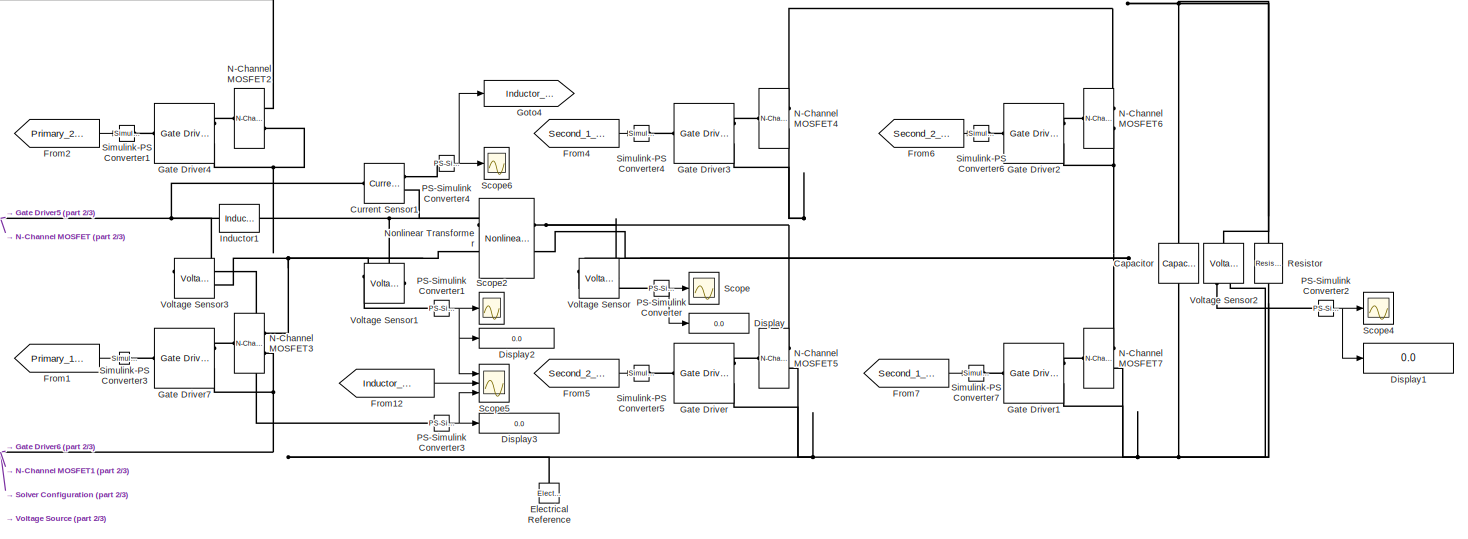
[diagram: root canvas - part 1/3, full width, top band]
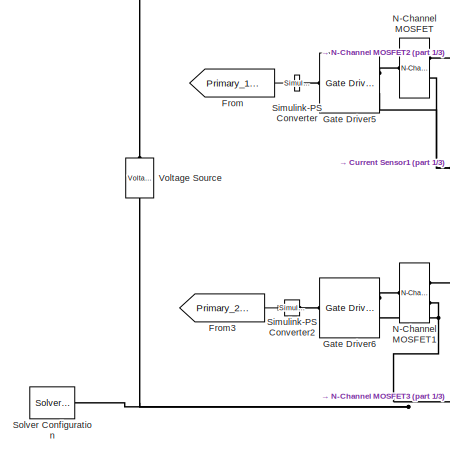
[diagram: root canvas - part 2/3, top left region]
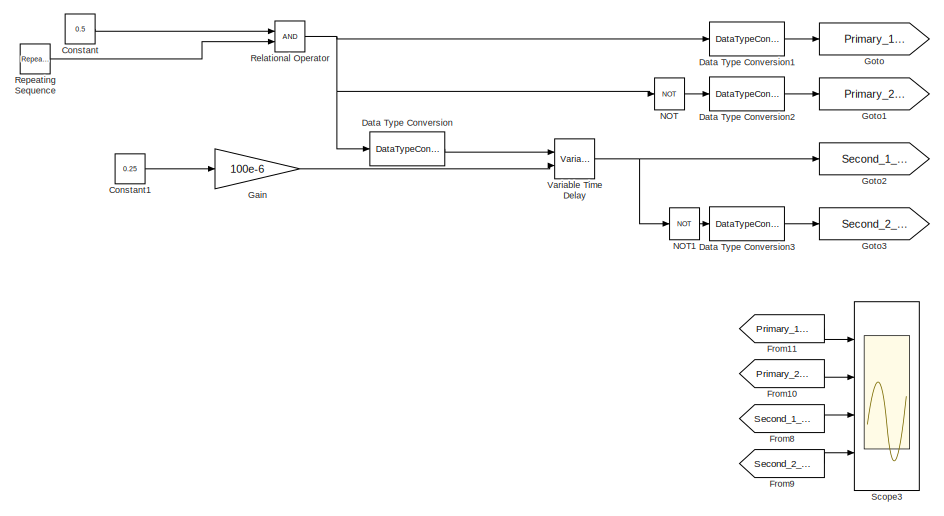
[diagram: root canvas - part 3/3, bottom center region]
MODEL slx_24731f9e79e2
KIND model
CONFIG AbsTol = auto
CONFIG EnableMultiTasking = off
CONFIG FixedStep = auto
CONFIG MaxStep = auto
CONFIG MinStep = auto
CONFIG RelTol = 1e-3
CONFIG SampleTimeConstraint = Unconstrained
CONFIG SolverName = VariableStepAuto
CONFIG StartTime = 0.0
CONFIG StopTime = 0.025
BLOCK [Reference] Capacitor  REF=fl_lib/Electrical/Electrical Elements/Capacitor
  NameLocation = left
  Ports = [0, 0, 0, 0, 0, 1, 1]
  SourceBlock = fl_lib/Electrical/Electrical Elements/Capacitor
  SourceProductBaseCode = SS
  SourceType = Capacitor
BLOCK [Constant] Constant
  SampleTime = 100e-6/200
  Value = 0.5
BLOCK [Constant] Constant1
  Value = 0.25
BLOCK [Reference] Current Sensor1  REF=fl_lib/Electrical/Electrical Sensors/Current Sensor
  Ports = [0, 0, 0, 0, 0, 1, 2]
  SourceBlock = fl_lib/Electrical/Electrical Sensors/Current Sensor
  SourceProductBaseCode = SS
  SourceType = Current Sensor
BLOCK [DataTypeConversion] Data Type Conversion
  OutDataTypeStr = double
  RndMeth = Floor
  SaturateOnIntegerOverflow = off
BLOCK [DataTypeConversion] Data Type Conversion1
  OutDataTypeStr = double
  RndMeth = Floor
  SaturateOnIntegerOverflow = off
BLOCK [DataTypeConversion] Data Type Conversion2
  OutDataTypeStr = double
  RndMeth = Floor
  SaturateOnIntegerOverflow = off
BLOCK [DataTypeConversion] Data Type Conversion3
  OutDataTypeStr = double
  RndMeth = Floor
  SaturateOnIntegerOverflow = off
BLOCK [Display] Display
  Decimation = 1
  Ports = [1]
BLOCK [Display] Display1
  Decimation = 1
  Ports = [1]
BLOCK [Display] Display2
  Decimation = 1
  Ports = [1]
BLOCK [Display] Display3
  Decimation = 1
  Ports = [1]
BLOCK [Reference] Electrical Reference  REF=fl_lib/Electrical/Electrical Elements/Electrical Reference
  NameLocation = right
  Ports = [0, 0, 0, 0, 0, 1]
  SourceBlock = fl_lib/Electrical/Electrical Elements/Electrical Reference
  SourceProductBaseCode = SS
  SourceType = Electrical Reference
BLOCK [From] From
  GotoTag = Primary_1_phase
BLOCK [From] From1
  GotoTag = Primary_1_phase
BLOCK [From] From10
  GotoTag = Primary_2_phase
BLOCK [From] From11
  GotoTag = Primary_1_phase
BLOCK [From] From12
  GotoTag = Inductor_Current
BLOCK [From] From2
  GotoTag = Primary_2_phase
BLOCK [From] From3
  GotoTag = Primary_2_phase
BLOCK [From] From4
  GotoTag = Second_1_phase
BLOCK [From] From5
  GotoTag = Second_2_phase
BLOCK [From] From6
  GotoTag = Second_2_phase
BLOCK [From] From7
  GotoTag = Second_1_phase
BLOCK [From] From8
  GotoTag = Second_1_phase
BLOCK [From] From9
  GotoTag = Second_2_phase
BLOCK [Gain] Gain
  Gain = 100e-6
BLOCK [Reference] Gate Driver  REF=ee_lib/Semiconductors &
Converters/Gate Driver
  Ports = [0, 0, 0, 0, 0, 1, 2]
  SourceBlock = ee_lib/Semiconductors &\nConverters/Gate Driver
  SourceProductBaseCode = PS
  SourceType = Gate Driver
BLOCK [Reference] Gate Driver1  REF=ee_lib/Semiconductors &
Converters/Gate Driver
  Ports = [0, 0, 0, 0, 0, 1, 2]
  SourceBlock = ee_lib/Semiconductors &\nConverters/Gate Driver
  SourceProductBaseCode = PS
  SourceType = Gate Driver
BLOCK [Reference] Gate Driver2  REF=ee_lib/Semiconductors &
Converters/Gate Driver
  Ports = [0, 0, 0, 0, 0, 1, 2]
  SourceBlock = ee_lib/Semiconductors &\nConverters/Gate Driver
  SourceProductBaseCode = PS
  SourceType = Gate Driver
BLOCK [Reference] Gate Driver3  REF=ee_lib/Semiconductors &
Converters/Gate Driver
  Ports = [0, 0, 0, 0, 0, 1, 2]
  SourceBlock = ee_lib/Semiconductors &\nConverters/Gate Driver
  SourceProductBaseCode = PS
  SourceType = Gate Driver
BLOCK [Reference] Gate Driver4  REF=ee_lib/Semiconductors &
Converters/Gate Driver
  Ports = [0, 0, 0, 0, 0, 1, 2]
  SourceBlock = ee_lib/Semiconductors &\nConverters/Gate Driver
  SourceProductBaseCode = PS
  SourceType = Gate Driver
BLOCK [Reference] Gate Driver5  REF=ee_lib/Semiconductors &
Converters/Gate Driver
  Ports = [0, 0, 0, 0, 0, 1, 2]
  SourceBlock = ee_lib/Semiconductors &\nConverters/Gate Driver
  SourceProductBaseCode = PS
  SourceType = Gate Driver
BLOCK [Reference] Gate Driver6  REF=ee_lib/Semiconductors &
Converters/Gate Driver
  Ports = [0, 0, 0, 0, 0, 1, 2]
  SourceBlock = ee_lib/Semiconductors &\nConverters/Gate Driver
  SourceProductBaseCode = PS
  SourceType = Gate Driver
BLOCK [Reference] Gate Driver7  REF=ee_lib/Semiconductors &
Converters/Gate Driver
  Ports = [0, 0, 0, 0, 0, 1, 2]
  SourceBlock = ee_lib/Semiconductors &\nConverters/Gate Driver
  SourceProductBaseCode = PS
  SourceType = Gate Driver
BLOCK [Goto] Goto
  GotoTag = Primary_1_phase
BLOCK [Goto] Goto1
  GotoTag = Primary_2_phase
BLOCK [Goto] Goto2
  GotoTag = Second_1_phase
BLOCK [Goto] Goto3
  GotoTag = Second_2_phase
BLOCK [Goto] Goto4
  GotoTag = Inductor_Current
BLOCK [Reference] Inductor1  REF=ee_lib/Passive/Inductor
  Ports = [0, 0, 0, 0, 0, 1, 1]
  SourceBlock = ee_lib/Passive/Inductor
  SourceProductBaseCode = PS
  SourceType = Inductor
BLOCK [Reference] N-Channel MOSFET  REF=ee_lib/Semiconductors &
Converters/N-Channel MOSFET
  Ports = [0, 0, 0, 0, 0, 1, 2]
  SourceBlock = ee_lib/Semiconductors &\nConverters/N-Channel MOSFET
  SourceProductBaseCode = PS
  SourceType = N-Channel MOSFET
BLOCK [Reference] N-Channel MOSFET1  REF=ee_lib/Semiconductors &
Converters/N-Channel MOSFET
  Ports = [0, 0, 0, 0, 0, 1, 2]
  SourceBlock = ee_lib/Semiconductors &\nConverters/N-Channel MOSFET
  SourceProductBaseCode = PS
  SourceType = N-Channel MOSFET
BLOCK [Reference] N-Channel MOSFET2  REF=ee_lib/Semiconductors &
Converters/N-Channel MOSFET
  Ports = [0, 0, 0, 0, 0, 1, 2]
  SourceBlock = ee_lib/Semiconductors &\nConverters/N-Channel MOSFET
  SourceProductBaseCode = PS
  SourceType = N-Channel MOSFET
BLOCK [Reference] N-Channel MOSFET3  REF=ee_lib/Semiconductors &
Converters/N-Channel MOSFET
  Ports = [0, 0, 0, 0, 0, 1, 2]
  SourceBlock = ee_lib/Semiconductors &\nConverters/N-Channel MOSFET
  SourceProductBaseCode = PS
  SourceType = N-Channel MOSFET
BLOCK [Reference] N-Channel MOSFET4  REF=ee_lib/Semiconductors &
Converters/N-Channel MOSFET
  Ports = [0, 0, 0, 0, 0, 1, 2]
  SourceBlock = ee_lib/Semiconductors &\nConverters/N-Channel MOSFET
  SourceProductBaseCode = PS
  SourceType = N-Channel MOSFET
BLOCK [Reference] N-Channel MOSFET5  REF=ee_lib/Semiconductors &
Converters/N-Channel MOSFET
  Ports = [0, 0, 0, 0, 0, 1, 2]
  SourceBlock = ee_lib/Semiconductors &\nConverters/N-Channel MOSFET
  SourceProductBaseCode = PS
  SourceType = N-Channel MOSFET
BLOCK [Reference] N-Channel MOSFET6  REF=ee_lib/Semiconductors &
Converters/N-Channel MOSFET
  Ports = [0, 0, 0, 0, 0, 1, 2]
  SourceBlock = ee_lib/Semiconductors &\nConverters/N-Channel MOSFET
  SourceProductBaseCode = PS
  SourceType = N-Channel MOSFET
BLOCK [Reference] N-Channel MOSFET7  REF=ee_lib/Semiconductors &
Converters/N-Channel MOSFET
  Ports = [0, 0, 0, 0, 0, 1, 2]
  SourceBlock = ee_lib/Semiconductors &\nConverters/N-Channel MOSFET
  SourceProductBaseCode = PS
  SourceType = N-Channel MOSFET
BLOCK [Logic] NOT
  AllPortsSameDT = off
  IconShape = distinctive
  Operator = NOT
  OutDataTypeStr = boolean
  Ports = [1, 1]
BLOCK [Logic] NOT1
  AllPortsSameDT = off
  IconShape = distinctive
  Operator = NOT
  OutDataTypeStr = boolean
  Ports = [1, 1]
BLOCK [Reference] Nonlinear Transformer  REF=ee_lib/Passive/Transformers/Nonlinear
Transformer
  Ports = [0, 0, 0, 0, 0, 2, 2]
  SourceBlock = ee_lib/Passive/Transformers/Nonlinear\nTransformer
  SourceProductBaseCode = PS
  SourceType = Nonlinear\nTransformer
BLOCK [Reference] PS-Simulink Converter  REF=nesl_utility/PS-Simulink
Converter
  Ports = [0, 1, 0, 0, 0, 1]
  SourceBlock = nesl_utility/PS-Simulink\nConverter
  SourceProductBaseCode = PW,SS
  SourceType = PS-Simulink\nConverter
BLOCK [Reference] PS-Simulink Converter1  REF=nesl_utility/PS-Simulink
Converter
  Ports = [0, 1, 0, 0, 0, 1]
  SourceBlock = nesl_utility/PS-Simulink\nConverter
  SourceProductBaseCode = PW,SS
  SourceType = PS-Simulink\nConverter
BLOCK [Reference] PS-Simulink Converter2  REF=nesl_utility/PS-Simulink
Converter
  Ports = [0, 1, 0, 0, 0, 1]
  SourceBlock = nesl_utility/PS-Simulink\nConverter
  SourceProductBaseCode = PW,SS
  SourceType = PS-Simulink\nConverter
BLOCK [Reference] PS-Simulink Converter3  REF=nesl_utility/PS-Simulink
Converter
  Ports = [0, 1, 0, 0, 0, 1]
  SourceBlock = nesl_utility/PS-Simulink\nConverter
  SourceProductBaseCode = PW,SS
  SourceType = PS-Simulink\nConverter
BLOCK [Reference] PS-Simulink Converter4  REF=nesl_utility/PS-Simulink
Converter
  Ports = [0, 1, 0, 0, 0, 1]
  SourceBlock = nesl_utility/PS-Simulink\nConverter
  SourceProductBaseCode = PW,SS
  SourceType = PS-Simulink\nConverter
BLOCK [RelationalOperator] Relational Operator
  InputSameDT = off
  OutDataTypeStr = boolean
  Ports = [2, 1]
  RndMeth = Simplest
BLOCK [Reference] Repeating Sequence  REF=simulink/Sources/Repeating
Sequence
  Ports = [0, 1]
  SourceBlock = simulink/Sources/Repeating\nSequence
  SourceProductBaseCode = SL
  SourceType = Repeating table
BLOCK [Reference] Resistor  REF=fl_lib/Electrical/Electrical Elements/Resistor
  NameLocation = left
  Ports = [0, 0, 0, 0, 0, 1, 1]
  SourceBlock = fl_lib/Electrical/Electrical Elements/Resistor
  SourceProductBaseCode = SS
  SourceType = Resistor
BLOCK [Scope] Scope
  Floating = off
  NumInputPorts = 1
  Ports = [1]
  ScopeSpecificationString = Simulink.scopes.TimeScopeBlockCfg('CurrentConfiguration', extmgr.ConfigurationSet(extmgr.Configuration('Core','General UI',true),extmgr.Configuration('Core','Source UI',true),extmgr.Configuration('Sources','WiredSimulink',true),extmgr.Configuration('Visuals','Time Domain',true,'SerializedDisplays',{struct('MinYLimReal','-74.03698','MaxYLimReal','1.88798','YLabelReal','','MinYLimMag','0.00000','Max...<+1393ch>
BLOCK [Scope] Scope2
  Floating = off
  NumInputPorts = 1
  Ports = [1]
  ScopeSpecificationString = Simulink.scopes.TimeScopeBlockCfg('CurrentConfiguration', extmgr.ConfigurationSet(extmgr.Configuration('Core','General UI',true),extmgr.Configuration('Core','Source UI',true),extmgr.Configuration('Sources','WiredSimulink',true,'DataLoggingVariableName','ScopeData2'),extmgr.Configuration('Visuals','Time Domain',true,'SerializedDisplays',{struct('MinYLimReal','-424.61489','MaxYLimReal','383.46117','...<+1444ch>
BLOCK [Scope] Scope3
  Floating = off
  NumInputPorts = 4
  Ports = [4]
  ScopeSpecificationString = Simulink.scopes.TimeScopeBlockCfg('CurrentConfiguration', extmgr.ConfigurationSet(extmgr.Configuration('Core','General UI',true),extmgr.Configuration('Core','Source UI',true),extmgr.Configuration('Sources','WiredSimulink',true,'DataLoggingVariableName','ScopeData1'),extmgr.Configuration('Visuals','Time Domain',true,'SerializedDisplays',{struct('MinYLimReal','-0.125','MaxYLimReal','1.05523','YLabel...<+3435ch>
BLOCK [Scope] Scope4
  Floating = off
  NumInputPorts = 1
  Ports = [1]
  ScopeSpecificationString = Simulink.scopes.TimeScopeBlockCfg('CurrentConfiguration', extmgr.ConfigurationSet(extmgr.Configuration('Core','General UI',true),extmgr.Configuration('Core','Source UI',true),extmgr.Configuration('Sources','WiredSimulink',true,'DataLoggingVariableName','ScopeData2'),extmgr.Configuration('Visuals','Time Domain',true,'SerializedDisplays',{struct('MinYLimReal','43.88033','MaxYLimReal','53.38222','YLa...<+1766ch>
BLOCK [Scope] Scope5
  Floating = off
  NumInputPorts = 3
  Ports = [3]
  ScopeSpecificationString = Simulink.scopes.TimeScopeBlockCfg('CurrentConfiguration', extmgr.ConfigurationSet(extmgr.Configuration('Core','General UI',true),extmgr.Configuration('Core','Source UI',true),extmgr.Configuration('Sources','WiredSimulink',true,'DataLoggingVariableName','ScopeData1'),extmgr.Configuration('Visuals','Time Domain',true,'SerializedDisplays',{struct('MinYLimReal','-444.77377','MaxYLimReal','500.64365','...<+2806ch>
BLOCK [Scope] Scope6
  Floating = off
  NumInputPorts = 1
  Ports = [1]
  ScopeSpecificationString = Simulink.scopes.TimeScopeBlockCfg('CurrentConfiguration', extmgr.ConfigurationSet(extmgr.Configuration('Core','General UI',true),extmgr.Configuration('Core','Source UI',true),extmgr.Configuration('Sources','WiredSimulink',true,'DataLoggingVariableName','ScopeData1'),extmgr.Configuration('Visuals','Time Domain',true,'SerializedDisplays',{struct('MinYLimReal','-125.45845','MaxYLimReal','94.2574','YL...<+1440ch>
BLOCK [Reference] Simulink-PS Converter  REF=nesl_utility/Simulink-PS
Converter
  Ports = [1, 0, 0, 0, 0, 0, 1]
  SourceBlock = nesl_utility/Simulink-PS\nConverter
  SourceProductBaseCode = PW,SS
  SourceType = Simulink-PS\nConverter
BLOCK [Reference] Simulink-PS Converter1  REF=nesl_utility/Simulink-PS
Converter
  Ports = [1, 0, 0, 0, 0, 0, 1]
  SourceBlock = nesl_utility/Simulink-PS\nConverter
  SourceProductBaseCode = PW,SS
  SourceType = Simulink-PS\nConverter
BLOCK [Reference] Simulink-PS Converter2  REF=nesl_utility/Simulink-PS
Converter
  Ports = [1, 0, 0, 0, 0, 0, 1]
  SourceBlock = nesl_utility/Simulink-PS\nConverter
  SourceProductBaseCode = PW,SS
  SourceType = Simulink-PS\nConverter
BLOCK [Reference] Simulink-PS Converter3  REF=nesl_utility/Simulink-PS
Converter
  Ports = [1, 0, 0, 0, 0, 0, 1]
  SourceBlock = nesl_utility/Simulink-PS\nConverter
  SourceProductBaseCode = PW,SS
  SourceType = Simulink-PS\nConverter
BLOCK [Reference] Simulink-PS Converter4  REF=nesl_utility/Simulink-PS
Converter
  Ports = [1, 0, 0, 0, 0, 0, 1]
  SourceBlock = nesl_utility/Simulink-PS\nConverter
  SourceProductBaseCode = PW,SS
  SourceType = Simulink-PS\nConverter
BLOCK [Reference] Simulink-PS Converter5  REF=nesl_utility/Simulink-PS
Converter
  Ports = [1, 0, 0, 0, 0, 0, 1]
  SourceBlock = nesl_utility/Simulink-PS\nConverter
  SourceProductBaseCode = PW,SS
  SourceType = Simulink-PS\nConverter
BLOCK [Reference] Simulink-PS Converter6  REF=nesl_utility/Simulink-PS
Converter
  Ports = [1, 0, 0, 0, 0, 0, 1]
  SourceBlock = nesl_utility/Simulink-PS\nConverter
  SourceProductBaseCode = PW,SS
  SourceType = Simulink-PS\nConverter
BLOCK [Reference] Simulink-PS Converter7  REF=nesl_utility/Simulink-PS
Converter
  Ports = [1, 0, 0, 0, 0, 0, 1]
  SourceBlock = nesl_utility/Simulink-PS\nConverter
  SourceProductBaseCode = PW,SS
  SourceType = Simulink-PS\nConverter
BLOCK [Reference] Solver Configuration  REF=nesl_utility/Solver
Configuration
  Ports = [0, 0, 0, 0, 0, 0, 1]
  SourceBlock = nesl_utility/Solver\nConfiguration
  SourceProductBaseCode = PW,SS
  SourceType = Solver\nConfiguration
BLOCK [VariableTransportDelay] Variable Time Delay
  MaximumDelay = 10
  Ports = [2, 1]
BLOCK [Reference] Voltage Sensor  REF=fl_lib/Electrical/Electrical Sensors/Voltage Sensor
  NameLocation = top
  Ports = [0, 0, 0, 0, 0, 1, 2]
  SourceBlock = fl_lib/Electrical/Electrical Sensors/Voltage Sensor
  SourceProductBaseCode = SS
  SourceType = Voltage Sensor
BLOCK [Reference] Voltage Sensor1  REF=fl_lib/Electrical/Electrical Sensors/Voltage Sensor
  NameLocation = top
  Ports = [0, 0, 0, 0, 0, 1, 2]
  SourceBlock = fl_lib/Electrical/Electrical Sensors/Voltage Sensor
  SourceProductBaseCode = SS
  SourceType = Voltage Sensor
BLOCK [Reference] Voltage Sensor2  REF=fl_lib/Electrical/Electrical Sensors/Voltage Sensor
  NameLocation = right
  Ports = [0, 0, 0, 0, 0, 1, 2]
  SourceBlock = fl_lib/Electrical/Electrical Sensors/Voltage Sensor
  SourceProductBaseCode = SS
  SourceType = Voltage Sensor
BLOCK [Reference] Voltage Sensor3  REF=fl_lib/Electrical/Electrical Sensors/Voltage Sensor
  NameLocation = top
  Ports = [0, 0, 0, 0, 0, 1, 2]
  SourceBlock = fl_lib/Electrical/Electrical Sensors/Voltage Sensor
  SourceProductBaseCode = SS
  SourceType = Voltage Sensor
BLOCK [Reference] Voltage Source  REF=ee_lib/Sources/Voltage Source
  NameLocation = right
  Ports = [0, 0, 0, 0, 0, 1, 1]
  SourceBlock = ee_lib/Sources/Voltage Source
  SourceProductBaseCode = PS
  SourceType = Voltage Source
LINE Constant1:1 -> Gain:1
LINE Constant:1 -> Relational Operator:1
LINE Data Type Conversion1:1 -> Goto:1
LINE Data Type Conversion2:1 -> Goto1:1
LINE Data Type Conversion3:1 -> Goto3:1
LINE Data Type Conversion:1 -> Variable Time Delay:1
LINE From10:1 -> Scope3:2
LINE From11:1 -> Scope3:1
LINE From12:1 -> Scope5:2
LINE From1:1 -> Simulink-PS Converter3:1
LINE From2:1 -> Simulink-PS Converter1:1
LINE From3:1 -> Simulink-PS Converter2:1
LINE From4:1 -> Simulink-PS Converter4:1
LINE From5:1 -> Simulink-PS Converter5:1
LINE From6:1 -> Simulink-PS Converter6:1
LINE From7:1 -> Simulink-PS Converter7:1
LINE From8:1 -> Scope3:3
LINE From9:1 -> Scope3:4
LINE From:1 -> Simulink-PS Converter:1
LINE Gain:1 -> Variable Time Delay:2
LINE NOT1:1 -> Data Type Conversion3:1
LINE NOT:1 -> Data Type Conversion2:1
NET PS-Simulink Converter1:1 -> Display2:1, Scope2:1, Scope5:1
NET PS-Simulink Converter2:1 -> Display1:1, Scope4:1
NET PS-Simulink Converter3:1 -> Display3:1, Scope5:3
NET PS-Simulink Converter4:1 -> Goto4:1, Scope6:1
NET PS-Simulink Converter:1 -> Display:1, Scope:1
NET Relational Operator:1 -> Data Type Conversion1:1, Data Type Conversion:1, NOT:1
LINE Repeating Sequence:1 -> Relational Operator:2
NET Variable Time Delay:1 -> Goto2:1, NOT1:1
PNET net1: Capacitor:LConn1 -- N-Channel MOSFET4:RConn1 -- N-Channel MOSFET6:RConn1 -- Resistor:LConn1 -- Voltage Sensor2:LConn1
PNET net2: Capacitor:RConn1 -- Electrical Reference:LConn1 -- Gate Driver1:RConn2 -- Gate Driver6:RConn2 -- Gate Driver7:RConn2 -- Gate Driver:RConn2 -- N-Channel MOSFET1:RConn2 -- N-Channel MOSFET3:RConn2 -- N-Channel MOSFET5:RConn2 -- N-Channel MOSFET7:RConn2 -- Resistor:RConn1 -- Solver Configuration:RConn1 -- Voltage Sensor2:RConn2 -- Voltage Source:RConn1
PNET net3: Current Sensor1:LConn1 -- Gate Driver5:RConn2 -- Inductor1:LConn1 -- N-Channel MOSFET1:RConn1 -- N-Channel MOSFET:RConn2 -- Voltage Sensor3:LConn1
PLINE Current Sensor1:RConn1 -- PS-Simulink Converter4:LConn1
PNET net4: Current Sensor1:RConn2 -- Inductor1:RConn1 -- Nonlinear Transformer:LConn1 -- Voltage Sensor1:LConn1
PLINE Gate Driver1:LConn1 -- Simulink-PS Converter7:RConn1
PLINE Gate Driver1:RConn1 -- N-Channel MOSFET7:LConn1
PLINE Gate Driver2:LConn1 -- Simulink-PS Converter6:RConn1
PLINE Gate Driver2:RConn1 -- N-Channel MOSFET6:LConn1
PNET net5: Gate Driver2:RConn2 -- N-Channel MOSFET6:RConn2 -- N-Channel MOSFET7:RConn1 -- Nonlinear Transformer:RConn2 -- Voltage Sensor:RConn2
PLINE Gate Driver3:LConn1 -- Simulink-PS Converter4:RConn1
PLINE Gate Driver3:RConn1 -- N-Channel MOSFET4:LConn1
PNET net6: Gate Driver3:RConn2 -- N-Channel MOSFET4:RConn2 -- N-Channel MOSFET5:RConn1 -- Nonlinear Transformer:RConn1 -- Voltage Sensor:LConn1
PLINE Gate Driver4:LConn1 -- Simulink-PS Converter1:RConn1
PLINE Gate Driver4:RConn1 -- N-Channel MOSFET2:LConn1
PNET net7: Gate Driver4:RConn2 -- N-Channel MOSFET2:RConn2 -- N-Channel MOSFET3:RConn1 -- Nonlinear Transformer:LConn2 -- Voltage Sensor1:RConn2 -- Voltage Sensor3:RConn2
PLINE Gate Driver5:LConn1 -- Simulink-PS Converter:RConn1
PLINE Gate Driver5:RConn1 -- N-Channel MOSFET:LConn1
PLINE Gate Driver6:LConn1 -- Simulink-PS Converter2:RConn1
PLINE Gate Driver6:RConn1 -- N-Channel MOSFET1:LConn1
PLINE Gate Driver7:LConn1 -- Simulink-PS Converter3:RConn1
PLINE Gate Driver7:RConn1 -- N-Channel MOSFET3:LConn1
PLINE Gate Driver:LConn1 -- Simulink-PS Converter5:RConn1
PLINE Gate Driver:RConn1 -- N-Channel MOSFET5:LConn1
PNET net8: N-Channel MOSFET2:RConn1 -- N-Channel MOSFET:RConn1 -- Voltage Source:LConn1
PLINE PS-Simulink Converter1:LConn1 -- Voltage Sensor1:RConn1
PLINE PS-Simulink Converter2:LConn1 -- Voltage Sensor2:RConn1
PLINE PS-Simulink Converter3:LConn1 -- Voltage Sensor3:RConn1
PLINE PS-Simulink Converter:LConn1 -- Voltage Sensor:RConn1
note: NET lines group one-source signal fan-out (src -> all destinations, sorted); 1:1 wires keep LINE; PNET lines group multi-terminal physical nets as a canonical sorted terminal list (undirected conserving connections); 2-terminal nets keep the pairwise PLINE form
